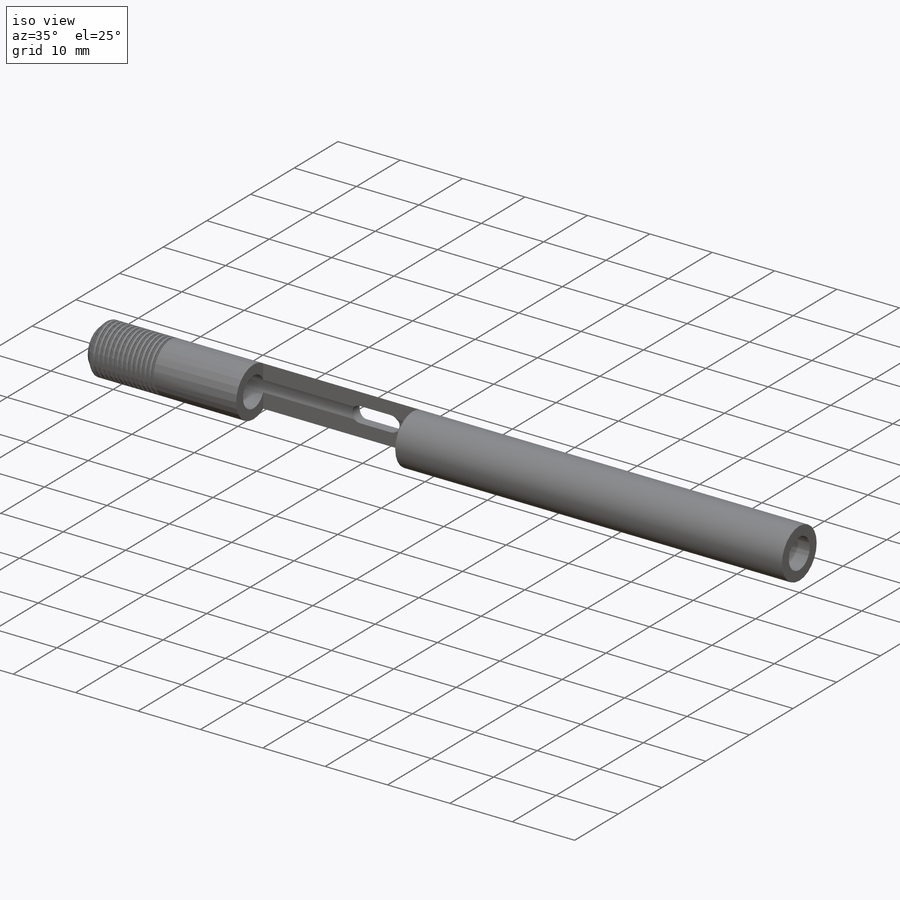
[diagram: iso view]
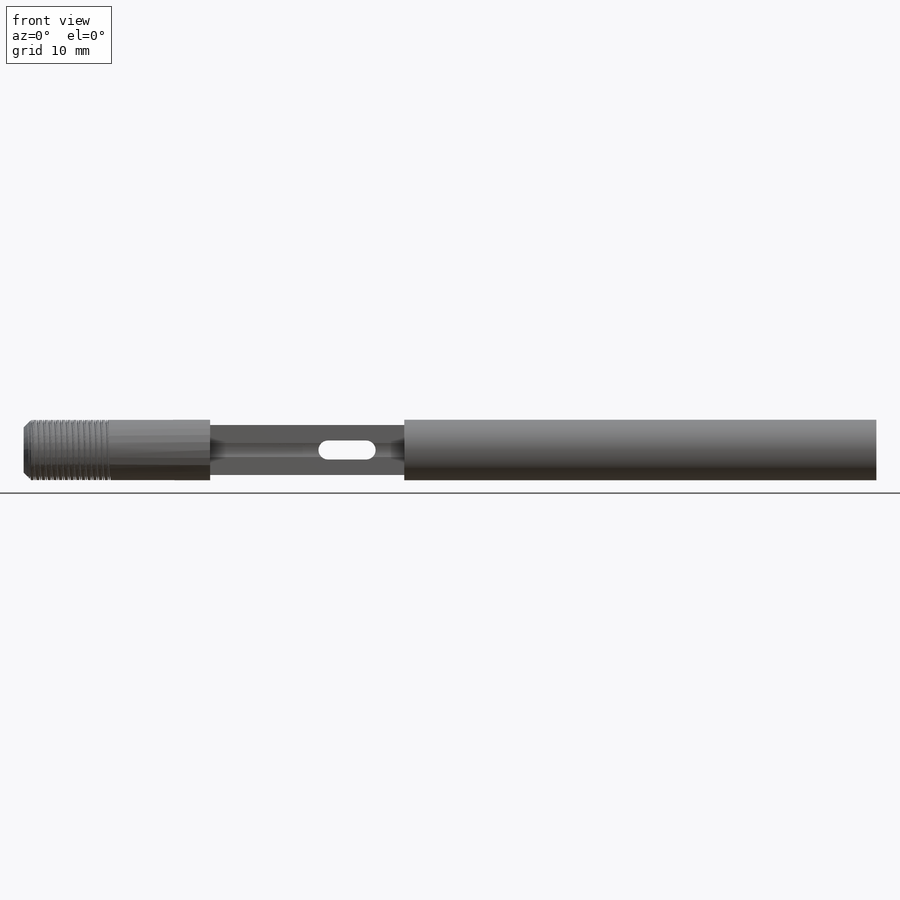
[diagram: front view]
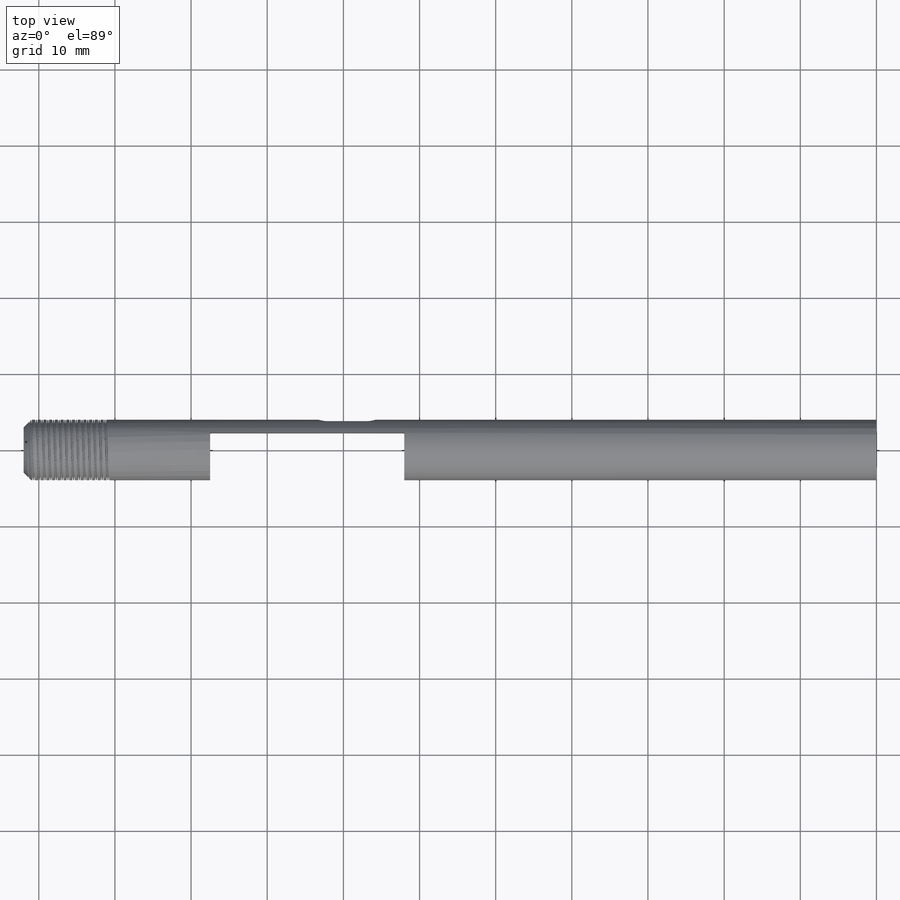
[diagram: top view]
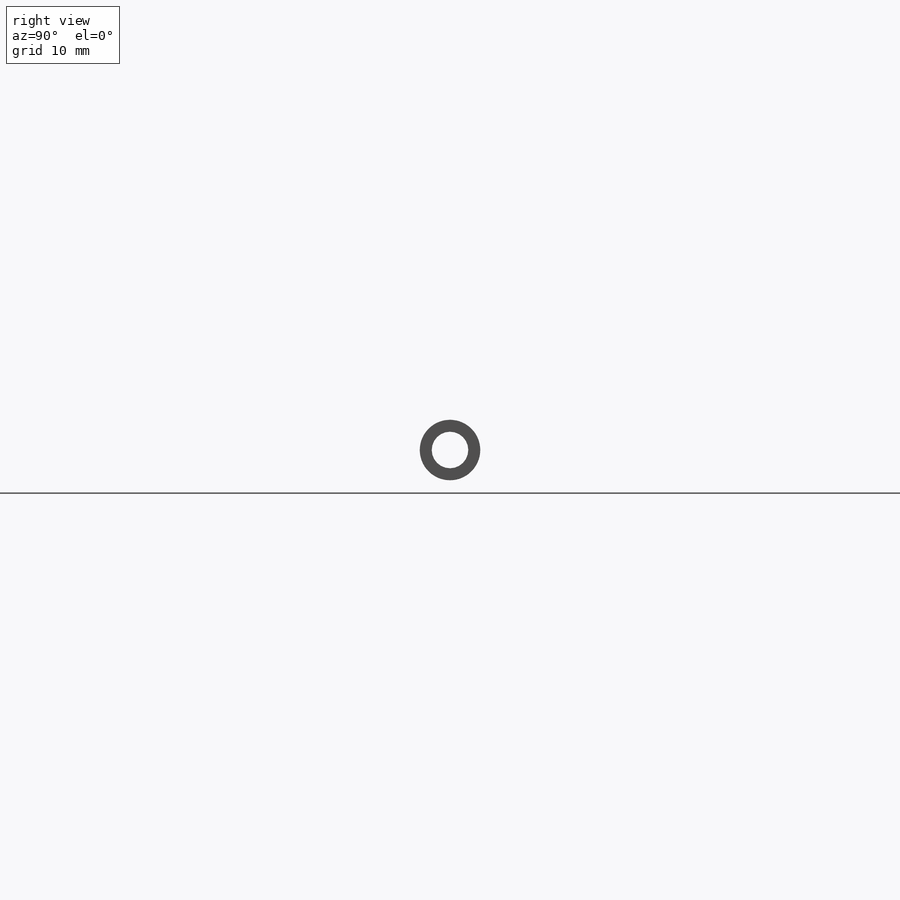
[diagram: right view]
SOLIDWORKS PART (.sldprt)
format: sldprt  version: not decoded by parser v0  size: 665,088 bytes
history: native  units: mm
features: sketch x7, cut_extrude x3, extrude x2, material x1, helix x1, chamfer x1, sweep x1 (+14 scaffold rows collapsed; 1 parser-record rows omitted)
feature tree (31):
  scaffold x14  (default folders/planes/origin — collapsed)
  material  "Material <not specified>"
  sketch  "Sketch2"  dims[D1=7.9375mm D2=4.5mm]
  extrude  "Body"  Depth=100mm
  sketch  "Sketch4"  dims[c1.D1=13.5mm c1.D2=1.75mm c1.D3=5.0mm c2.D1=13.5mm c2.D2=25.0mm c3.D1=1.75mm c3.D2=12.75mm c3.D3=3.5mm c4.D2=25.5mm c4.D3=12.25mm]
  parser-record x1  (decoder bookkeeping rows leaked as tree rows — omitted from the tree; the rows remain in map.json)
  sketch  "Sketch5"  dims[D1=7.9375mm]
  extrude  "Nose"  Depth=12mm
  sketch  "Sketch7"  dims[D1=3.5mm D2=~0.046875mm D3=~0.09375mm D4=0.1875mm]
  sketch  "Sketch8"
  helix  "Helix/Spiral1"  Pitch=12mm
  chamfer  "Chamfer1"  Distance=1mm Angle=45deg
  sketch  "Sketch10"  dims[D1=4.8mm]
  cut_extrude  "Cut-Extrude3"  [1 undecoded]
  sweep  "Cut-Sweep1"
  cut_extrude  "cavity for slider"  [1 undecoded]
  sketch  "Sketch3"  dims[c1.D1=1.0mm c1.D2=1.25mm c1.D3=1.25mm c2.D2=25.25mm c2.D1=5.0mm c2.D3=3.77mm]
  cut_extrude  "slider track for shaft of shoulder screw (2-56 threads)"  [1 undecoded]
decode coverage: 10 of 15 modeling features carry decoded parameters
note: ~ marks probable driven/reference dimensions
note: 3 parameter values undecoded
summary: no parameter record found for 3 features
note: suppression state not decoded; provenance and decode notes live in map.json
